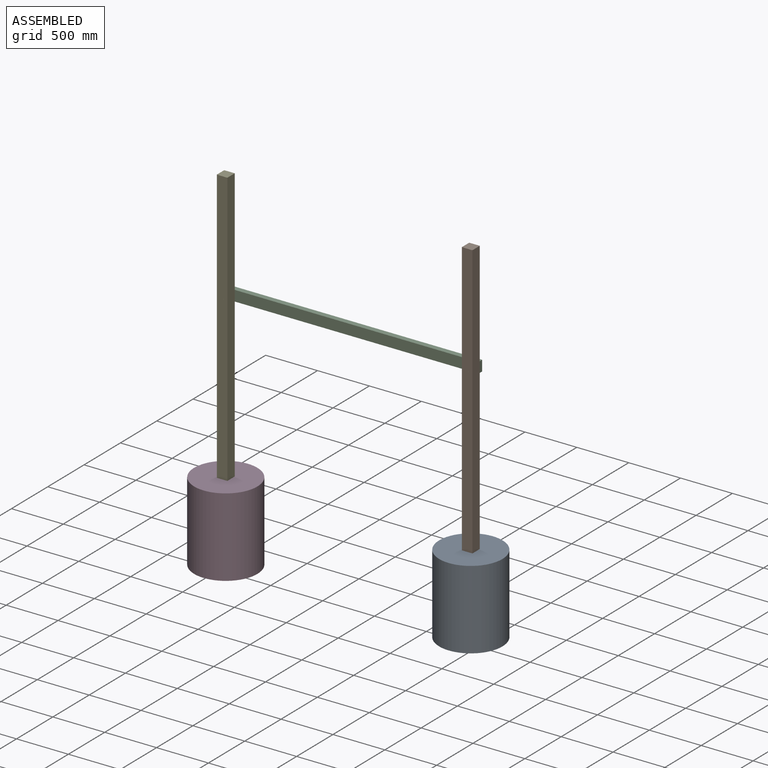
[diagram: assembled view]
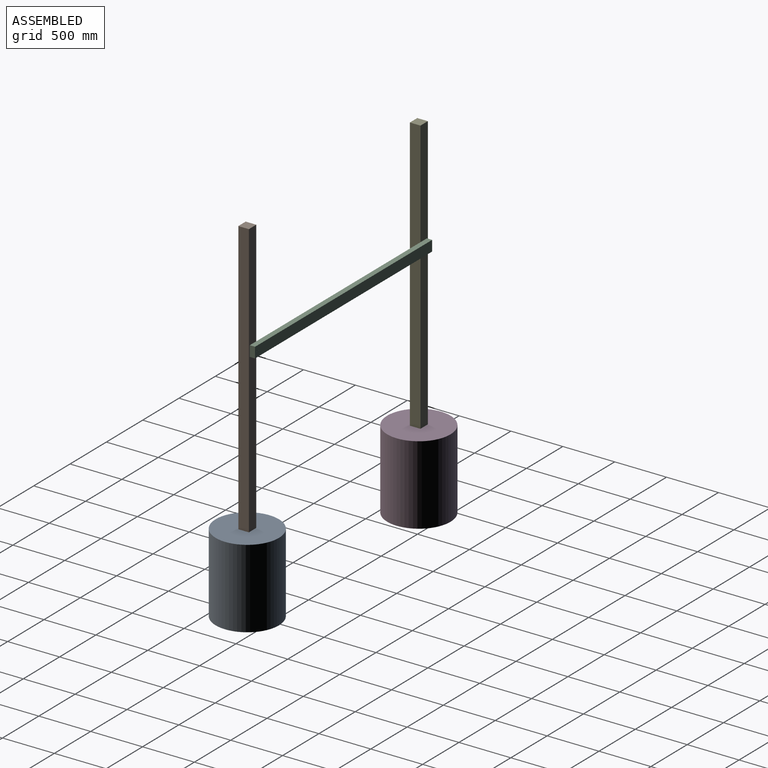
[diagram: assembled view, second angle]
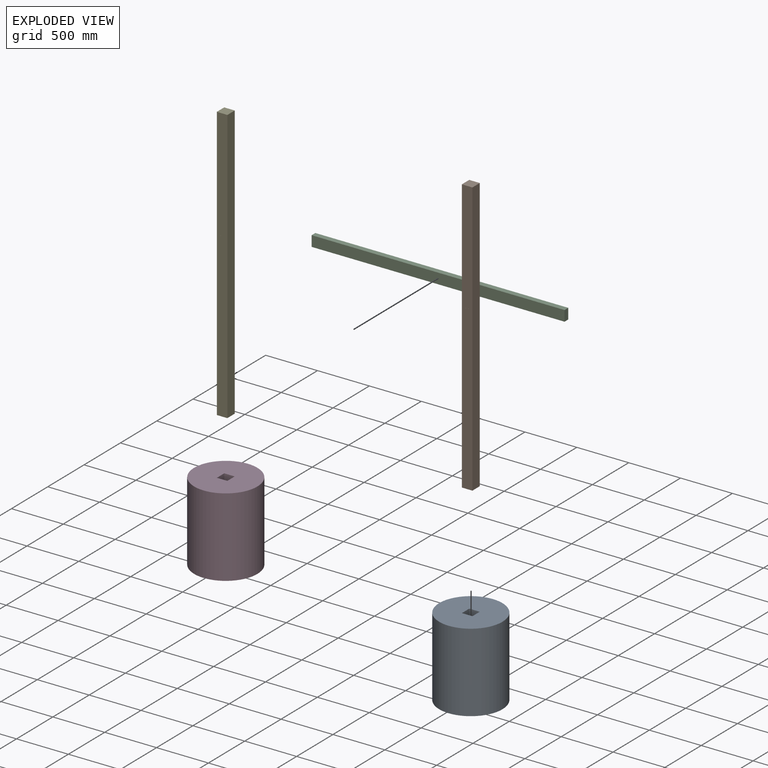
[diagram: exploded view]
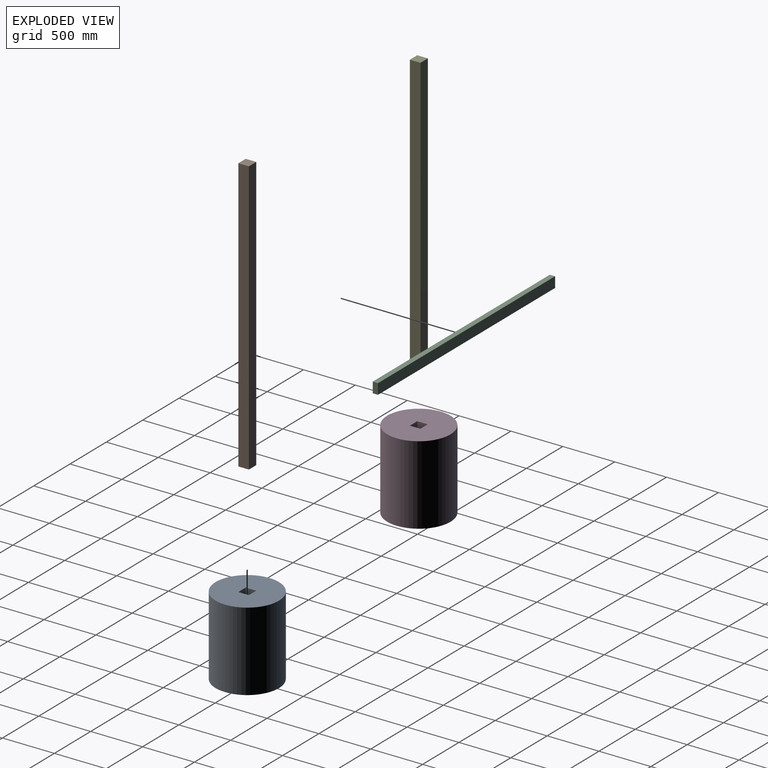
[diagram: exploded view, second angle]
ASSEMBLY  parts=5 mates=4
PART A: 8 faces, bbox 609.6x609.6x762 mm
  f0: plane 304.8x101.6mm, normal (0,1,0), area 30967.7mm2, adj f1,f3,f5,f7
  f1: plane 304.8x101.6mm, normal (1,0,0), area 30967.7mm2, adj f0,f2,f5,f7
  f2: plane 304.8x101.6mm, normal (0,-1,0), area 30967.7mm2, adj f1,f3,f5,f7
  f3: plane 304.8x101.6mm, normal (-1,0,0), area 30967.7mm2, adj f0,f2,f5,f7
  f4: cylinder r=304.8mm len=762mm, axis (0,0,-1), area 1459317.5mm2, adj f5,f6
  f5: plane 609.6x609.6mm, normal (0,0,1), area 281540.9mm2, adj f0,f1,f2,f3,f4
  f6: plane 609.6x609.6mm, normal (0,0,-1), area 291863.5mm2, adj f4
  f7: plane 101.6x101.6mm, normal (0,0,1), area 10322.6mm2, adj f0,f1,f2,f3
PART B: 8 faces, bbox 101.6x101.6x2641.6 mm
  f0: plane 2641.6x101.6mm, normal (-1,0,0), area 268386.6mm2, adj f1,f5,f6,f7
  f1: plane 101.6x101.6mm, normal (0,0,-1), area 10322.6mm2, adj f0,f2,f6,f7
  f2: plane 2641.6x101.6mm, normal (1,0,0), area 268386.6mm2, adj f1,f5,f6,f7
  f3: cylinder r=1.59mm len=101.6mm, axis (0,1,0), area 1013.4mm2, adj f6,f7
  f4: cylinder r=1.59mm len=101.6mm, axis (0,1,0), area 1013.4mm2, adj f6,f7
  f5: plane 101.6x101.6mm, normal (0,0,1), area 10322.6mm2, adj f0,f2,f6,f7
  f6: plane 2641.6x101.6mm, normal (0,-1,0), area 268370.7mm2, adj f0,f1,f2,f3,f4,f5
  f7: plane 2641.6x101.6mm, normal (0,1,0), area 268370.7mm2, adj f0,f1,f2,f3,f4,f5
PART C: 10 faces, bbox 2438.4x50.8x101.6 mm
  f0: plane 101.6x50.8mm, normal (-1,0,0), area 5161.3mm2, adj f1,f7,f8,f9
  f1: plane 2438.4x50.8mm, normal (0,0,-1), area 123870.7mm2, adj f0,f2,f8,f9
  f2: plane 101.6x50.8mm, normal (1,0,0), area 5161.3mm2, adj f1,f7,f8,f9
  f3: cylinder r=1.59mm len=50.8mm, axis (0,1,0), area 506.7mm2, adj f8,f9
  f4: cylinder r=1.59mm len=50.8mm, axis (0,1,0), area 506.7mm2, adj f8,f9
  f5: cylinder r=1.59mm len=50.8mm, axis (0,1,0), area 506.7mm2, adj f8,f9
  f6: cylinder r=1.59mm len=50.8mm, axis (0,1,0), area 506.7mm2, adj f8,f9
  f7: plane 2438.4x50.8mm, normal (0,0,1), area 123870.7mm2, adj f0,f2,f8,f9
  f8: plane 2438.4x101.6mm, normal (0,-1,0), area 247709.8mm2, adj f0,f1,f2,f3,f4,f5,f6,f7
  f9: plane 2438.4x101.6mm, normal (0,1,0), area 247709.8mm2, adj f0,f1,f2,f3,f4,f5,f6,f7
PART D: same geometry as A
PART E: same geometry as B
PLACE A t=(2179.14,26.37,-107.99)mm
PLACE B t=(2104.65,84.63,838.95)mm
PLACE C t=(465.7,135.43,2228.81)mm
PLACE D t=(-183.06,26.37,-107.99)mm fixed
PLACE E t=(-257.55,84.63,838.95)mm
MATE fastened B.f1 <-> A.f4  axis (0,0,-1) through (2105.55,33.83,654.01)mm
MATE fastened E.f1 <-> D.f4  axis (0,0,-1) through (-256.65,33.83,654.01)mm
MATE fastened C.f4 <-> E.f4  axis (0,-1,0) through (-243.95,84.63,2228.81)mm
MATE fastened C.f5 <-> B.f3  axis (0,-1,0) through (2092.85,84.63,2228.81)mm
